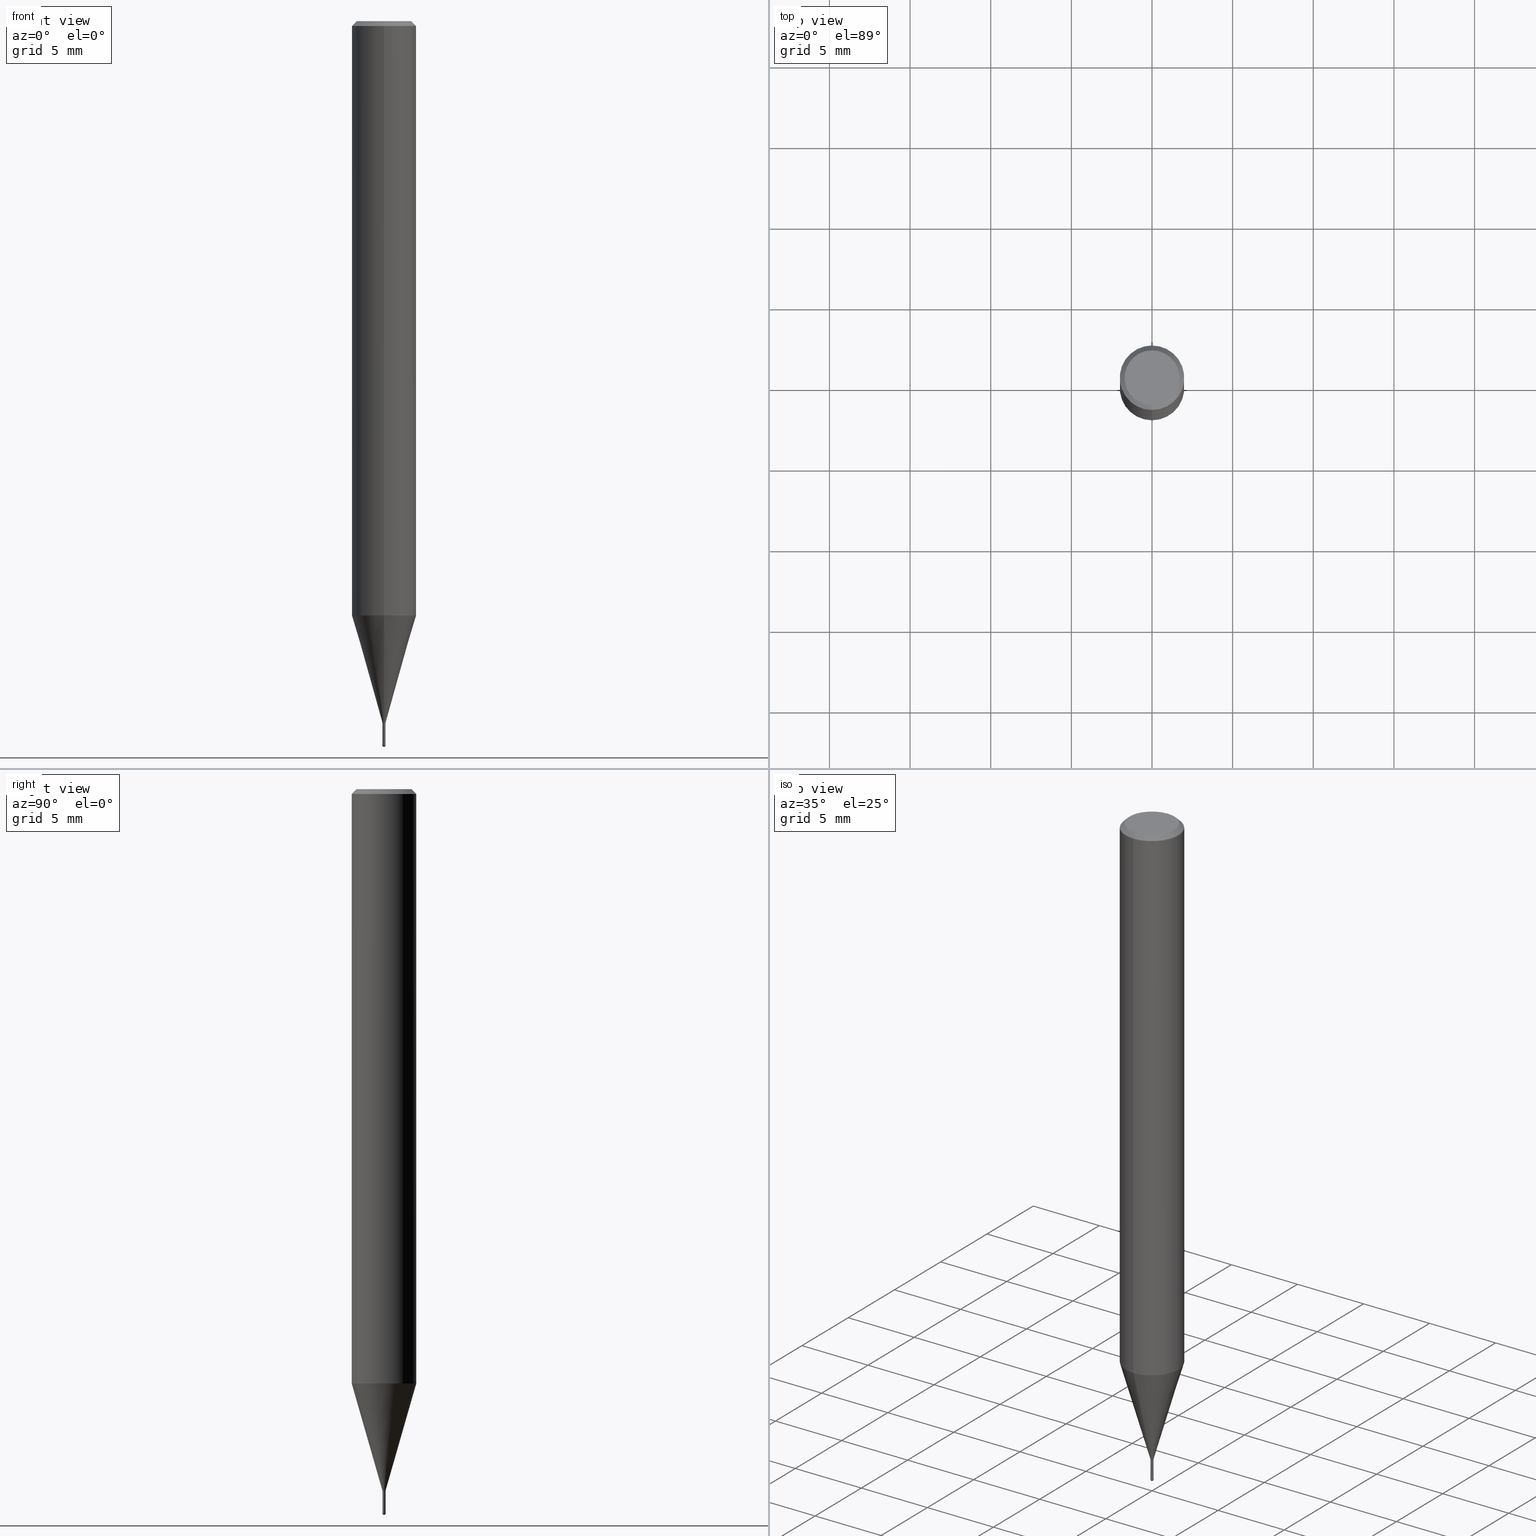
[diagram: canonical four-view strip — front | top / right | iso, engineering-drawing reading convention]
A machine part, canonical four-view strip (front | top / right | iso — engineering-drawing reading convention). The complete STEP part file that produces these views, byte-faithful:
ISO-10303-21;
HEADER;
FILE_DESCRIPTION(('no description'),'unknown implementation level');
FILE_NAME('HSLB2002-015-Huellk.stp','  ',('CIMSOURCE GmbH'),('CADClick - KiM GmbH - www.kimweb.de'),'unknown preprocess','ACIS','unknown authorization');
FILE_SCHEMA(('automotive_design'));
ENDSEC;
DATA;
#1=MECHANICAL_DESIGN_GEOMETRIC_PRESENTATION_REPRESENTATION(' ',(#14,#15,#16,#17,#18,#19,#20,#21,#22,#23,#24,#25,#26,#27,#28,#29,#30,#31,#32,#33,#34,#35,#36,#37,#38,#39,#40,#41,#42,#43,#44,#45,#46,#47,#48,#49,#50,#51,#52,#53,#54,#55,#56,#57,#58,#59,#60,#61,#62,#63,#64,#65,#66,#67,#68,#69,#70,#71,#72,#73,#74),#10);
#2=PRODUCT_DEFINITION_CONTEXT('',#75,'design');
#3=APPLICATION_PROTOCOL_DEFINITION('INTERNATIONAL STANDARD','automotive_design',1994,#75);
#4=PRODUCT_CATEGORY_RELATIONSHIP('NONE','NONE',#76,#77);
#5=SHAPE_DEFINITION_REPRESENTATION(#78,#79);
#6=PRODUCT_DEFINITION_CONTEXT('',#80,'design');
#7=APPLICATION_PROTOCOL_DEFINITION('INTERNATIONAL STANDARD','automotive_design',1994,#80);
#8=PRODUCT_CATEGORY_RELATIONSHIP('NONE','NONE',#81,#82);
#9=SHAPE_DEFINITION_REPRESENTATION(#83,#84);
#10= (GEOMETRIC_REPRESENTATION_CONTEXT(3)GLOBAL_UNCERTAINTY_ASSIGNED_CONTEXT((#87))GLOBAL_UNIT_ASSIGNED_CONTEXT((#89,#90,#91))REPRESENTATION_CONTEXT('NONE','WORKSPACE'));
#14=STYLED_ITEM('',(#93),#94);
#15=STYLED_ITEM('',(#95),#96);
#16=STYLED_ITEM('',(#97),#98);
#17=STYLED_ITEM('',(#99),#100);
#18=STYLED_ITEM('',(#101),#102);
#19=STYLED_ITEM('',(#103),#104);
#20=STYLED_ITEM('',(#105),#106);
#21=STYLED_ITEM('',(#107),#108);
#22=STYLED_ITEM('',(#109),#110);
#23=STYLED_ITEM('',(#111),#112);
#24=STYLED_ITEM('',(#113),#114);
#25=STYLED_ITEM('',(#115),#116);
#26=STYLED_ITEM('',(#117),#118);
#27=STYLED_ITEM('',(#119),#120);
#28=STYLED_ITEM('',(#121),#122);
#29=STYLED_ITEM('',(#123),#124);
#30=STYLED_ITEM('',(#125),#126);
#31=STYLED_ITEM('',(#127),#128);
#32=STYLED_ITEM('',(#129),#130);
#33=STYLED_ITEM('',(#131),#132);
#34=STYLED_ITEM('',(#133),#134);
#35=STYLED_ITEM('',(#135),#136);
#36=STYLED_ITEM('',(#137),#138);
#37=STYLED_ITEM('',(#139),#140);
#38=STYLED_ITEM('',(#141),#142);
#39=STYLED_ITEM('',(#143),#144);
#40=STYLED_ITEM('',(#145),#146);
#41=STYLED_ITEM('',(#147),#148);
#42=STYLED_ITEM('',(#149),#150);
#43=STYLED_ITEM('',(#151),#152);
#44=STYLED_ITEM('',(#153),#154);
#45=STYLED_ITEM('',(#155),#156);
#46=STYLED_ITEM('',(#157),#158);
#47=STYLED_ITEM('',(#159),#160);
#48=STYLED_ITEM('',(#161),#162);
#49=STYLED_ITEM('',(#163),#164);
#50=STYLED_ITEM('',(#165),#166);
#51=STYLED_ITEM('',(#167),#168);
#52=STYLED_ITEM('',(#169),#170);
#53=STYLED_ITEM('',(#171),#172);
#54=STYLED_ITEM('',(#173),#174);
#55=STYLED_ITEM('',(#175),#176);
#56=STYLED_ITEM('',(#177),#178);
#57=STYLED_ITEM('',(#179),#180);
#58=STYLED_ITEM('',(#181),#182);
#59=STYLED_ITEM('',(#183),#184);
#60=STYLED_ITEM('',(#185),#186);
#61=STYLED_ITEM('',(#187),#188);
#62=STYLED_ITEM('',(#189),#190);
#63=STYLED_ITEM('',(#191),#192);
#64=STYLED_ITEM('',(#193),#194);
#65=STYLED_ITEM('',(#195),#196);
#66=STYLED_ITEM('',(#197),#198);
#67=STYLED_ITEM('',(#199),#200);
#68=STYLED_ITEM('',(#201),#202);
#69=STYLED_ITEM('',(#203),#204);
#70=STYLED_ITEM('',(#205),#206);
#71=STYLED_ITEM('',(#207),#208);
#72=STYLED_ITEM('',(#209),#210);
#73=STYLED_ITEM('',(#211),#212);
#74=STYLED_ITEM('',(#213),#214);
#75=APPLICATION_CONTEXT(' ');
#76=PRODUCT_CATEGORY('part','NONE');
#77=PRODUCT_RELATED_PRODUCT_CATEGORY('detail',' ',(#215));
#78=PRODUCT_DEFINITION_SHAPE('NONE','NONE',#216);
#79=ADVANCED_BREP_SHAPE_REPRESENTATION('1',(#208,#217),#10);
#80=APPLICATION_CONTEXT(' ');
#81=PRODUCT_CATEGORY('part','NONE');
#82=PRODUCT_RELATED_PRODUCT_CATEGORY('detail',' ',(#218));
#83=PRODUCT_DEFINITION_SHAPE('NONE','NONE',#219);
#84=ADVANCED_BREP_SHAPE_REPRESENTATION('2',(#164,#220),#10);
#87=UNCERTAINTY_MEASURE_WITH_UNIT(LENGTH_MEASURE(1.0E-006),#89,'','');
#89= (CONVERSION_BASED_UNIT('MILLIMETRE',#223)LENGTH_UNIT()NAMED_UNIT(#226));
#90= (NAMED_UNIT(#228)PLANE_ANGLE_UNIT()SI_UNIT($,.RADIAN.));
#91= (NAMED_UNIT(#228)SOLID_ANGLE_UNIT()SI_UNIT($,.STERADIAN.));
#93=PRESENTATION_STYLE_ASSIGNMENT((#234));
#94=VERTEX_POINT('',#235);
#95=PRESENTATION_STYLE_ASSIGNMENT((#236));
#96=VERTEX_POINT('',#237);
#97=PRESENTATION_STYLE_ASSIGNMENT((#238));
#98=EDGE_CURVE('',#112,#132,#239,.T.);
#99=PRESENTATION_STYLE_ASSIGNMENT((#240));
#100=EDGE_CURVE('',#144,#120,#241,.T.);
#101=PRESENTATION_STYLE_ASSIGNMENT((#242));
#102=ADVANCED_FACE('',(#243),#244,.T.);
#103=PRESENTATION_STYLE_ASSIGNMENT((#245));
#104=VERTEX_POINT('',#246);
#105=PRESENTATION_STYLE_ASSIGNMENT((#247));
#106=EDGE_CURVE('',#94,#132,#248,.T.);
#107=PRESENTATION_STYLE_ASSIGNMENT((#249));
#108=EDGE_CURVE('',#214,#104,#250,.T.);
#109=PRESENTATION_STYLE_ASSIGNMENT((#251));
#110=EDGE_CURVE('',#120,#144,#252,.T.);
#111=PRESENTATION_STYLE_ASSIGNMENT((#253));
#112=VERTEX_POINT('',#254);
#113=PRESENTATION_STYLE_ASSIGNMENT((#255));
#114=VERTEX_POINT('',#256);
#115=PRESENTATION_STYLE_ASSIGNMENT((#257));
#116=EDGE_CURVE('',#190,#174,#258,.T.);
#117=PRESENTATION_STYLE_ASSIGNMENT((#259));
#118=EDGE_CURVE('',#136,#120,#260,.T.);
#119=PRESENTATION_STYLE_ASSIGNMENT((#261));
#120=VERTEX_POINT('',#262);
#121=PRESENTATION_STYLE_ASSIGNMENT((#263));
#122=ADVANCED_FACE('',(#264),#265,.T.);
#123=PRESENTATION_STYLE_ASSIGNMENT((#266));
#124=VERTEX_POINT('',#267);
#125=PRESENTATION_STYLE_ASSIGNMENT((#268));
#126=EDGE_CURVE('',#144,#120,#269,.T.);
#127=PRESENTATION_STYLE_ASSIGNMENT((#270));
#128=EDGE_CURVE('',#136,#124,#271,.T.);
#129=PRESENTATION_STYLE_ASSIGNMENT((#272));
#130=EDGE_CURVE('',#132,#148,#273,.T.);
#131=PRESENTATION_STYLE_ASSIGNMENT((#274));
#132=VERTEX_POINT('',#275);
#133=PRESENTATION_STYLE_ASSIGNMENT((#276));
#134=EDGE_CURVE('',#206,#104,#277,.T.);
#135=PRESENTATION_STYLE_ASSIGNMENT((#278));
#136=VERTEX_POINT('',#279);
#137=PRESENTATION_STYLE_ASSIGNMENT((#280));
#138=EDGE_CURVE('',#112,#114,#281,.T.);
#139=PRESENTATION_STYLE_ASSIGNMENT((#282));
#140=EDGE_CURVE('',#174,#190,#283,.T.);
#141=PRESENTATION_STYLE_ASSIGNMENT((#284));
#142=ADVANCED_FACE('',(#285),#286,.T.);
#143=PRESENTATION_STYLE_ASSIGNMENT((#287));
#144=VERTEX_POINT('',#288);
#145=PRESENTATION_STYLE_ASSIGNMENT((#289));
#146=EDGE_CURVE('',#214,#96,#290,.T.);
#147=PRESENTATION_STYLE_ASSIGNMENT((#291));
#148=VERTEX_POINT('',#292);
#149=PRESENTATION_STYLE_ASSIGNMENT((#293));
#150=ADVANCED_FACE('',(#294),#295,.T.);
#151=PRESENTATION_STYLE_ASSIGNMENT((#296));
#152=EDGE_CURVE('',#94,#114,#297,.T.);
#153=PRESENTATION_STYLE_ASSIGNMENT((#298));
#154=ADVANCED_FACE('',(#299),#300,.T.);
#155=PRESENTATION_STYLE_ASSIGNMENT((#301));
#156=EDGE_CURVE('',#114,#112,#302,.T.);
#157=PRESENTATION_STYLE_ASSIGNMENT((#303));
#158=EDGE_CURVE('',#104,#206,#304,.T.);
#159=PRESENTATION_STYLE_ASSIGNMENT((#305));
#160=ADVANCED_FACE('',(#306),#307,.T.);
#161=PRESENTATION_STYLE_ASSIGNMENT((#308));
#162=ADVANCED_FACE('',(#309),#310,.T.);
#163=PRESENTATION_STYLE_ASSIGNMENT((#311));
#164=MANIFOLD_SOLID_BREP('2',#312);
#165=PRESENTATION_STYLE_ASSIGNMENT((#313));
#166=EDGE_CURVE('',#96,#214,#314,.T.);
#167=PRESENTATION_STYLE_ASSIGNMENT((#315));
#168=ADVANCED_FACE('',(#316),#317,.T.);
#169=PRESENTATION_STYLE_ASSIGNMENT((#318));
#170=ADVANCED_FACE('',(#319),#320,.T.);
#171=PRESENTATION_STYLE_ASSIGNMENT((#321));
#172=ADVANCED_FACE('',(#322),#323,.T.);
#173=PRESENTATION_STYLE_ASSIGNMENT((#324));
#174=VERTEX_POINT('',#325);
#175=PRESENTATION_STYLE_ASSIGNMENT((#326));
#176=EDGE_CURVE('',#194,#94,#327,.T.);
#177=PRESENTATION_STYLE_ASSIGNMENT((#328));
#178=ADVANCED_FACE('',(#329),#330,.T.);
#179=PRESENTATION_STYLE_ASSIGNMENT((#331));
#180=EDGE_CURVE('',#148,#194,#332,.T.);
#181=PRESENTATION_STYLE_ASSIGNMENT((#333));
#182=ADVANCED_FACE('',(#334),#335,.T.);
#183=PRESENTATION_STYLE_ASSIGNMENT((#336));
#184=EDGE_CURVE('',#190,#206,#337,.T.);
#185=PRESENTATION_STYLE_ASSIGNMENT((#338));
#186=ADVANCED_FACE('',(#339),#340,.T.);
#187=PRESENTATION_STYLE_ASSIGNMENT((#341));
#188=ADVANCED_FACE('',(#342),#343,.T.);
#189=PRESENTATION_STYLE_ASSIGNMENT((#344));
#190=VERTEX_POINT('',#345);
#191=PRESENTATION_STYLE_ASSIGNMENT((#346));
#192=EDGE_CURVE('',#132,#94,#347,.T.);
#193=PRESENTATION_STYLE_ASSIGNMENT((#348));
#194=VERTEX_POINT('',#349);
#195=PRESENTATION_STYLE_ASSIGNMENT((#350));
#196=EDGE_CURVE('',#124,#136,#351,.T.);
#197=PRESENTATION_STYLE_ASSIGNMENT((#352));
#198=EDGE_CURVE('',#144,#124,#353,.T.);
#199=PRESENTATION_STYLE_ASSIGNMENT((#354));
#200=ADVANCED_FACE('',(#355,#356),#357,.T.);
#201=PRESENTATION_STYLE_ASSIGNMENT((#358));
#202=ADVANCED_FACE('',(#359),#360,.T.);
#203=PRESENTATION_STYLE_ASSIGNMENT((#361));
#204=EDGE_CURVE('',#104,#174,#362,.T.);
#205=PRESENTATION_STYLE_ASSIGNMENT((#363));
#206=VERTEX_POINT('',#364);
#207=PRESENTATION_STYLE_ASSIGNMENT((#365));
#208=MANIFOLD_SOLID_BREP('1',#366);
#209=PRESENTATION_STYLE_ASSIGNMENT((#367));
#210=EDGE_CURVE('',#194,#148,#368,.T.);
#211=PRESENTATION_STYLE_ASSIGNMENT((#369));
#212=EDGE_CURVE('',#206,#96,#370,.T.);
#213=PRESENTATION_STYLE_ASSIGNMENT((#371));
#214=VERTEX_POINT('',#372);
#215=PRODUCT('1','1','PART-1-DESC',(#373));
#216=PRODUCT_DEFINITION('NONE','NONE',#374,#2);
#217=AXIS2_PLACEMENT_3D('',#375,#376,#377);
#218=PRODUCT('2','2','PART-2-DESC',(#378));
#219=PRODUCT_DEFINITION('NONE','NONE',#379,#6);
#220=AXIS2_PLACEMENT_3D('',#380,#381,#382);
#223=LENGTH_MEASURE_WITH_UNIT(LENGTH_MEASURE(1.0),#383);
#226=DIMENSIONAL_EXPONENTS(1.0,0.0,0.0,0.0,0.0,0.0,0.0);
#228=DIMENSIONAL_EXPONENTS(0.0,0.0,0.0,0.0,0.0,0.0,0.0);
#234=POINT_STYLE(' ',#384,POSITIVE_LENGTH_MEASURE(1.0E-006),#385);
#235=CARTESIAN_POINT('',(0.0,0.09495,-43.5));
#236=POINT_STYLE(' ',#386,POSITIVE_LENGTH_MEASURE(1.0E-006),#387);
#237=CARTESIAN_POINT('',(0.0,2.0,-36.856));
#238=CURVE_STYLE('',#388,POSITIVE_LENGTH_MEASURE(1.0E-006),#389);
#239=LINE('',#390,#391);
#240=CURVE_STYLE('',#392,POSITIVE_LENGTH_MEASURE(1.0E-006),#393);
#241=CIRCLE('',#394,0.1);
#242=SURFACE_STYLE_USAGE(.BOTH.,#395);
#243=FACE_OUTER_BOUND('',#396,.T.);
#244=CYLINDRICAL_SURFACE('',#397,2.0);
#245=POINT_STYLE(' ',#398,POSITIVE_LENGTH_MEASURE(1.0E-006),#399);
#246=CARTESIAN_POINT('',(2.44921270764475E-016,-2.0,-0.299999999999997));
#247=CURVE_STYLE('',#400,POSITIVE_LENGTH_MEASURE(1.0E-006),#401);
#248=CIRCLE('',#402,0.09495);
#249=CURVE_STYLE('',#403,POSITIVE_LENGTH_MEASURE(1.0E-006),#404);
#250=LINE('',#405,#406);
#251=CURVE_STYLE('',#407,POSITIVE_LENGTH_MEASURE(1.0E-006),#408);
#252=CIRCLE('',#409,0.1);
#253=POINT_STYLE(' ',#410,POSITIVE_LENGTH_MEASURE(1.0E-006),#411);
#254=CARTESIAN_POINT('',(1.16276373295435E-017,-0.09495,-44.84));
#255=POINT_STYLE(' ',#412,POSITIVE_LENGTH_MEASURE(1.0E-006),#413);
#256=CARTESIAN_POINT('',(0.0,0.09495,-44.84));
#257=CURVE_STYLE('',#414,POSITIVE_LENGTH_MEASURE(1.0E-006),#415);
#258=CIRCLE('',#416,1.7);
#259=CURVE_STYLE('',#417,POSITIVE_LENGTH_MEASURE(1.0E-006),#418);
#260=LINE('',#419,#420);
#261=POINT_STYLE(' ',#421,POSITIVE_LENGTH_MEASURE(1.0E-006),#422);
#262=CARTESIAN_POINT('',(0.0,0.1,-44.9));
#263=SURFACE_STYLE_USAGE(.BOTH.,#423);
#264=FACE_OUTER_BOUND('',#424,.T.);
#265=CONICAL_SURFACE('',#425,1.04745,0.279233718115795);
#266=POINT_STYLE(' ',#426,POSITIVE_LENGTH_MEASURE(1.0E-006),#427);
#267=CARTESIAN_POINT('',(1.22338174746855E-017,-0.0999,-44.84));
#268=CURVE_STYLE('',#428,POSITIVE_LENGTH_MEASURE(1.0E-006),#429);
#269=CIRCLE('',#430,0.1);
#270=CURVE_STYLE('',#431,POSITIVE_LENGTH_MEASURE(1.0E-006),#432);
#271=CIRCLE('',#433,0.0999);
#272=CURVE_STYLE('',#434,POSITIVE_LENGTH_MEASURE(1.0E-006),#435);
#273=LINE('',#436,#437);
#274=POINT_STYLE(' ',#438,POSITIVE_LENGTH_MEASURE(1.0E-006),#439);
#275=CARTESIAN_POINT('',(1.16276373295435E-017,-0.09495,-43.5));
#276=CURVE_STYLE('',#440,POSITIVE_LENGTH_MEASURE(1.0E-006),#441);
#277=CIRCLE('',#442,2.0);
#278=POINT_STYLE(' ',#443,POSITIVE_LENGTH_MEASURE(1.0E-006),#444);
#279=CARTESIAN_POINT('',(0.0,0.0999,-44.84));
#280=CURVE_STYLE('',#445,POSITIVE_LENGTH_MEASURE(1.0E-006),#446);
#281=CIRCLE('',#447,0.09495);
#282=CURVE_STYLE('',#448,POSITIVE_LENGTH_MEASURE(1.0E-006),#449);
#283=CIRCLE('',#450,1.7);
#284=SURFACE_STYLE_USAGE(.BOTH.,#451);
#285=FACE_OUTER_BOUND('',#452,.T.);
#286=CYLINDRICAL_SURFACE('',#453,0.09495);
#287=POINT_STYLE(' ',#454,POSITIVE_LENGTH_MEASURE(1.0E-006),#455);
#288=CARTESIAN_POINT('',(1.22460635382238E-017,-0.1,-44.9));
#289=CURVE_STYLE('',#456,POSITIVE_LENGTH_MEASURE(1.0E-006),#457);
#290=CIRCLE('',#458,2.0);
#291=POINT_STYLE(' ',#459,POSITIVE_LENGTH_MEASURE(1.0E-006),#460);
#292=CARTESIAN_POINT('',(2.44915147732706E-016,-1.99995,-36.856));
#293=SURFACE_STYLE_USAGE(.BOTH.,#461);
#294=FACE_OUTER_BOUND('',#462,.T.);
#295=CONICAL_SURFACE('',#463,1.85,0.785398163397453);
#296=CURVE_STYLE('',#464,POSITIVE_LENGTH_MEASURE(1.0E-006),#465);
#297=LINE('',#466,#467);
#298=SURFACE_STYLE_USAGE(.BOTH.,#468);
#299=FACE_OUTER_BOUND('',#469,.T.);
#300=SPHERICAL_SURFACE('',#470,0.1);
#301=CURVE_STYLE('',#471,POSITIVE_LENGTH_MEASURE(1.0E-006),#472);
#302=CIRCLE('',#473,0.09495);
#303=CURVE_STYLE('',#474,POSITIVE_LENGTH_MEASURE(1.0E-006),#475);
#304=CIRCLE('',#476,2.0);
#305=SURFACE_STYLE_USAGE(.BOTH.,#477);
#306=FACE_OUTER_BOUND('',#478,.T.);
#307=PLANE('',#479);
#308=SURFACE_STYLE_USAGE(.BOTH.,#480);
#309=FACE_OUTER_BOUND('',#481,.T.);
#310=SPHERICAL_SURFACE('',#482,0.1);
#311=SURFACE_STYLE_USAGE(.BOTH.,#483);
#312=CLOSED_SHELL('',(#162,#178,#182,#202,#154));
#313=CURVE_STYLE('',#484,POSITIVE_LENGTH_MEASURE(1.0E-006),#485);
#314=CIRCLE('',#486,2.0);
#315=SURFACE_STYLE_USAGE(.BOTH.,#487);
#316=FACE_OUTER_BOUND('',#488,.T.);
#317=CYLINDRICAL_SURFACE('',#489,0.09495);
#318=SURFACE_STYLE_USAGE(.BOTH.,#490);
#319=FACE_OUTER_BOUND('',#491,.T.);
#320=PLANE('',#492);
#321=SURFACE_STYLE_USAGE(.BOTH.,#493);
#322=FACE_OUTER_BOUND('',#494,.T.);
#323=CONICAL_SURFACE('',#495,1.85,0.785398163397453);
#324=POINT_STYLE(' ',#496,POSITIVE_LENGTH_MEASURE(1.0E-006),#497);
#325=CARTESIAN_POINT('',(2.08183080149804E-016,-1.7,0.0));
#326=CURVE_STYLE('',#498,POSITIVE_LENGTH_MEASURE(1.0E-006),#499);
#327=LINE('',#500,#501);
#328=SURFACE_STYLE_USAGE(.BOTH.,#502);
#329=FACE_OUTER_BOUND('',#503,.T.);
#330=CONICAL_SURFACE('',#504,0.09995,0.00166666512345941);
#331=CURVE_STYLE('',#505,POSITIVE_LENGTH_MEASURE(1.0E-006),#506);
#332=CIRCLE('',#507,1.99995);
#333=SURFACE_STYLE_USAGE(.BOTH.,#508);
#334=FACE_OUTER_BOUND('',#509,.T.);
#335=PLANE('',#510);
#336=CURVE_STYLE('',#511,POSITIVE_LENGTH_MEASURE(1.0E-006),#512);
#337=LINE('',#513,#514);
#338=SURFACE_STYLE_USAGE(.BOTH.,#515);
#339=FACE_OUTER_BOUND('',#516,.T.);
#340=CYLINDRICAL_SURFACE('',#517,2.0);
#341=SURFACE_STYLE_USAGE(.BOTH.,#518);
#342=FACE_OUTER_BOUND('',#519,.T.);
#343=CONICAL_SURFACE('',#520,1.04745,0.279233718115795);
#344=POINT_STYLE(' ',#521,POSITIVE_LENGTH_MEASURE(1.0E-006),#522);
#345=CARTESIAN_POINT('',(0.0,1.7,0.0));
#346=CURVE_STYLE('',#523,POSITIVE_LENGTH_MEASURE(1.0E-006),#524);
#347=CIRCLE('',#525,0.09495);
#348=POINT_STYLE(' ',#526,POSITIVE_LENGTH_MEASURE(1.0E-006),#527);
#349=CARTESIAN_POINT('',(0.0,1.99995,-36.856));
#350=CURVE_STYLE('',#528,POSITIVE_LENGTH_MEASURE(1.0E-006),#529);
#351=CIRCLE('',#530,0.0999);
#352=CURVE_STYLE('',#531,POSITIVE_LENGTH_MEASURE(1.0E-006),#532);
#353=LINE('',#533,#534);
#354=SURFACE_STYLE_USAGE(.BOTH.,#535);
#355=FACE_OUTER_BOUND('',#536,.T.);
#356=FACE_BOUND('',#537,.T.);
#357=PLANE('',#538);
#358=SURFACE_STYLE_USAGE(.BOTH.,#539);
#359=FACE_OUTER_BOUND('',#540,.T.);
#360=CONICAL_SURFACE('',#541,0.09995,0.00166666512345941);
#361=CURVE_STYLE('',#542,POSITIVE_LENGTH_MEASURE(1.0E-006),#543);
#362=LINE('',#544,#545);
#363=POINT_STYLE(' ',#546,POSITIVE_LENGTH_MEASURE(1.0E-006),#547);
#364=CARTESIAN_POINT('',(0.0,2.0,-0.299999999999997));
#365=SURFACE_STYLE_USAGE(.BOTH.,#548);
#366=CLOSED_SHELL('',(#142,#188,#186,#150,#200,#170,#172,#102,#122,#168,#160));
#367=CURVE_STYLE('',#549,POSITIVE_LENGTH_MEASURE(1.0E-006),#550);
#368=CIRCLE('',#551,1.99995);
#369=CURVE_STYLE('',#552,POSITIVE_LENGTH_MEASURE(1.0E-006),#553);
#370=LINE('',#554,#555);
#371=POINT_STYLE(' ',#556,POSITIVE_LENGTH_MEASURE(1.0E-006),#557);
#372=CARTESIAN_POINT('',(2.44921270764475E-016,-2.0,-36.856));
#373=PRODUCT_CONTEXT('',#75,'mechanical');
#374=PRODUCT_DEFINITION_FORMATION_WITH_SPECIFIED_SOURCE(' ','NONE',#215,.NOT_KNOWN.);
#375=CARTESIAN_POINT('',(0.0,0.0,0.0));
#376=DIRECTION('',(0.0,0.0,1.0));
#377=DIRECTION('',(1.0,0.0,0.0));
#378=PRODUCT_CONTEXT('',#80,'mechanical');
#379=PRODUCT_DEFINITION_FORMATION_WITH_SPECIFIED_SOURCE(' ','NONE',#218,.NOT_KNOWN.);
#380=CARTESIAN_POINT('',(0.0,0.0,0.0));
#381=DIRECTION('',(0.0,0.0,1.0));
#382=DIRECTION('',(1.0,0.0,0.0));
#383= (NAMED_UNIT(#226)LENGTH_UNIT()SI_UNIT(.MILLI.,.METRE.));
#384=PRE_DEFINED_MARKER('');
#385=COLOUR_RGB('',0.498039215803146,0.498039215803146,0.498039215803146);
#386=PRE_DEFINED_MARKER('');
#387=COLOUR_RGB('',0.498039215803146,0.498039215803146,0.498039215803146);
#388=DRAUGHTING_PRE_DEFINED_CURVE_FONT('continuous');
#389=COLOUR_RGB('',0.498039215803146,0.498039215803146,0.498039215803146);
#390=CARTESIAN_POINT('',(1.16276373295435E-017,-0.09495,-44.17));
#391=VECTOR('',#559,1.0);
#392=DRAUGHTING_PRE_DEFINED_CURVE_FONT('continuous');
#393=COLOUR_RGB('',0.800000011920929,0.800000011920929,0.800000011920929);
#394=AXIS2_PLACEMENT_3D('',#560,#561,#562);
#395=SURFACE_SIDE_STYLE('',(#563));
#396=EDGE_LOOP('',(#564,#565,#566,#567));
#397=AXIS2_PLACEMENT_3D('',#568,#569,#570);
#398=PRE_DEFINED_MARKER('');
#399=COLOUR_RGB('',0.498039215803146,0.498039215803146,0.498039215803146);
#400=DRAUGHTING_PRE_DEFINED_CURVE_FONT('continuous');
#401=COLOUR_RGB('',0.498039215803146,0.498039215803146,0.498039215803146);
#402=AXIS2_PLACEMENT_3D('',#571,#572,#573);
#403=DRAUGHTING_PRE_DEFINED_CURVE_FONT('continuous');
#404=COLOUR_RGB('',0.498039215803146,0.498039215803146,0.498039215803146);
#405=CARTESIAN_POINT('',(2.44921270764475E-016,-2.0,-18.578));
#406=VECTOR('',#574,1.0);
#407=DRAUGHTING_PRE_DEFINED_CURVE_FONT('continuous');
#408=COLOUR_RGB('',0.800000011920929,0.800000011920929,0.800000011920929);
#409=AXIS2_PLACEMENT_3D('',#575,#576,#577);
#410=PRE_DEFINED_MARKER('');
#411=COLOUR_RGB('',0.498039215803146,0.498039215803146,0.498039215803146);
#412=PRE_DEFINED_MARKER('');
#413=COLOUR_RGB('',0.498039215803146,0.498039215803146,0.498039215803146);
#414=DRAUGHTING_PRE_DEFINED_CURVE_FONT('continuous');
#415=COLOUR_RGB('',0.498039215803146,0.498039215803146,0.498039215803146);
#416=AXIS2_PLACEMENT_3D('',#578,#579,#580);
#417=DRAUGHTING_PRE_DEFINED_CURVE_FONT('continuous');
#418=COLOUR_RGB('',0.800000011920929,0.800000011920929,0.800000011920929);
#419=CARTESIAN_POINT('',(-1.22399405064547E-017,0.09995,-44.87));
#420=VECTOR('',#581,1.0);
#421=PRE_DEFINED_MARKER('');
#422=COLOUR_RGB('',0.800000011920929,0.800000011920929,0.800000011920929);
#423=SURFACE_SIDE_STYLE('',(#582));
#424=EDGE_LOOP('',(#583,#584,#585,#586));
#425=AXIS2_PLACEMENT_3D('',#587,#588,#589);
#426=PRE_DEFINED_MARKER('');
#427=COLOUR_RGB('',0.800000011920929,0.800000011920929,0.800000011920929);
#428=DRAUGHTING_PRE_DEFINED_CURVE_FONT('continuous');
#429=COLOUR_RGB('',0.800000011920929,0.800000011920929,0.800000011920929);
#430=AXIS2_PLACEMENT_3D('',#590,#591,#592);
#431=DRAUGHTING_PRE_DEFINED_CURVE_FONT('continuous');
#432=COLOUR_RGB('',0.800000011920929,0.800000011920929,0.800000011920929);
#433=AXIS2_PLACEMENT_3D('',#593,#594,#595);
#434=DRAUGHTING_PRE_DEFINED_CURVE_FONT('continuous');
#435=COLOUR_RGB('',0.498039215803146,0.498039215803146,0.498039215803146);
#436=CARTESIAN_POINT('',(1.28271392531125E-016,-1.04745,-40.178));
#437=VECTOR('',#596,1.0);
#438=PRE_DEFINED_MARKER('');
#439=COLOUR_RGB('',0.498039215803146,0.498039215803146,0.498039215803146);
#440=DRAUGHTING_PRE_DEFINED_CURVE_FONT('continuous');
#441=COLOUR_RGB('',0.498039215803146,0.498039215803146,0.498039215803146);
#442=AXIS2_PLACEMENT_3D('',#597,#598,#599);
#443=PRE_DEFINED_MARKER('');
#444=COLOUR_RGB('',0.800000011920929,0.800000011920929,0.800000011920929);
#445=DRAUGHTING_PRE_DEFINED_CURVE_FONT('continuous');
#446=COLOUR_RGB('',0.498039215803146,0.498039215803146,0.498039215803146);
#447=AXIS2_PLACEMENT_3D('',#600,#601,#602);
#448=DRAUGHTING_PRE_DEFINED_CURVE_FONT('continuous');
#449=COLOUR_RGB('',0.498039215803146,0.498039215803146,0.498039215803146);
#450=AXIS2_PLACEMENT_3D('',#603,#604,#605);
#451=SURFACE_SIDE_STYLE('',(#606));
#452=EDGE_LOOP('',(#607,#608,#609,#610));
#453=AXIS2_PLACEMENT_3D('',#611,#612,#613);
#454=PRE_DEFINED_MARKER('');
#455=COLOUR_RGB('',0.800000011920929,0.800000011920929,0.800000011920929);
#456=DRAUGHTING_PRE_DEFINED_CURVE_FONT('continuous');
#457=COLOUR_RGB('',0.498039215803146,0.498039215803146,0.498039215803146);
#458=AXIS2_PLACEMENT_3D('',#614,#615,#616);
#459=PRE_DEFINED_MARKER('');
#460=COLOUR_RGB('',0.498039215803146,0.498039215803146,0.498039215803146);
#461=SURFACE_SIDE_STYLE('',(#617));
#462=EDGE_LOOP('',(#618,#619,#620,#621));
#463=AXIS2_PLACEMENT_3D('',#622,#623,#624);
#464=DRAUGHTING_PRE_DEFINED_CURVE_FONT('continuous');
#465=COLOUR_RGB('',0.498039215803146,0.498039215803146,0.498039215803146);
#466=CARTESIAN_POINT('',(-1.16276373295435E-017,0.09495,-44.17));
#467=VECTOR('',#625,1.0);
#468=SURFACE_SIDE_STYLE('',(#626));
#469=EDGE_LOOP('',(#627,#628));
#470=AXIS2_PLACEMENT_3D('',#629,#630,#631);
#471=DRAUGHTING_PRE_DEFINED_CURVE_FONT('continuous');
#472=COLOUR_RGB('',0.498039215803146,0.498039215803146,0.498039215803146);
#473=AXIS2_PLACEMENT_3D('',#632,#633,#634);
#474=DRAUGHTING_PRE_DEFINED_CURVE_FONT('continuous');
#475=COLOUR_RGB('',0.498039215803146,0.498039215803146,0.498039215803146);
#476=AXIS2_PLACEMENT_3D('',#635,#636,#637);
#477=SURFACE_SIDE_STYLE('',(#638));
#478=EDGE_LOOP('',(#639,#640));
#479=AXIS2_PLACEMENT_3D('',#641,#642,#643);
#480=SURFACE_SIDE_STYLE('',(#644));
#481=EDGE_LOOP('',(#645,#646));
#482=AXIS2_PLACEMENT_3D('',#647,#648,#649);
#483=SURFACE_SIDE_STYLE('',(#650));
#484=DRAUGHTING_PRE_DEFINED_CURVE_FONT('continuous');
#485=COLOUR_RGB('',0.498039215803146,0.498039215803146,0.498039215803146);
#486=AXIS2_PLACEMENT_3D('',#651,#652,#653);
#487=SURFACE_SIDE_STYLE('',(#654));
#488=EDGE_LOOP('',(#655,#656,#657,#658));
#489=AXIS2_PLACEMENT_3D('',#659,#660,#661);
#490=SURFACE_SIDE_STYLE('',(#662));
#491=EDGE_LOOP('',(#663,#664));
#492=AXIS2_PLACEMENT_3D('',#665,#666,#667);
#493=SURFACE_SIDE_STYLE('',(#668));
#494=EDGE_LOOP('',(#669,#670,#671,#672));
#495=AXIS2_PLACEMENT_3D('',#673,#674,#675);
#496=PRE_DEFINED_MARKER('');
#497=COLOUR_RGB('',0.498039215803146,0.498039215803146,0.498039215803146);
#498=DRAUGHTING_PRE_DEFINED_CURVE_FONT('continuous');
#499=COLOUR_RGB('',0.498039215803146,0.498039215803146,0.498039215803146);
#500=CARTESIAN_POINT('',(-1.28271392531125E-016,1.04745,-40.178));
#501=VECTOR('',#676,1.0);
#502=SURFACE_SIDE_STYLE('',(#677));
#503=EDGE_LOOP('',(#678,#679,#680,#681));
#504=AXIS2_PLACEMENT_3D('',#682,#683,#684);
#505=DRAUGHTING_PRE_DEFINED_CURVE_FONT('continuous');
#506=COLOUR_RGB('',0.498039215803146,0.498039215803146,0.498039215803146);
#507=AXIS2_PLACEMENT_3D('',#685,#686,#687);
#508=SURFACE_SIDE_STYLE('',(#688));
#509=EDGE_LOOP('',(#689,#690));
#510=AXIS2_PLACEMENT_3D('',#691,#692,#693);
#511=DRAUGHTING_PRE_DEFINED_CURVE_FONT('continuous');
#512=COLOUR_RGB('',0.498039215803146,0.498039215803146,0.498039215803146);
#513=CARTESIAN_POINT('',(-2.2655217545714E-016,1.85,-0.149999999999999));
#514=VECTOR('',#694,1.0);
#515=SURFACE_SIDE_STYLE('',(#695));
#516=EDGE_LOOP('',(#696,#697,#698,#699));
#517=AXIS2_PLACEMENT_3D('',#700,#701,#702);
#518=SURFACE_SIDE_STYLE('',(#703));
#519=EDGE_LOOP('',(#704,#705,#706,#707));
#520=AXIS2_PLACEMENT_3D('',#708,#709,#710);
#521=PRE_DEFINED_MARKER('');
#522=COLOUR_RGB('',0.498039215803146,0.498039215803146,0.498039215803146);
#523=DRAUGHTING_PRE_DEFINED_CURVE_FONT('continuous');
#524=COLOUR_RGB('',0.498039215803146,0.498039215803146,0.498039215803146);
#525=AXIS2_PLACEMENT_3D('',#711,#712,#713);
#526=PRE_DEFINED_MARKER('');
#527=COLOUR_RGB('',0.498039215803146,0.498039215803146,0.498039215803146);
#528=DRAUGHTING_PRE_DEFINED_CURVE_FONT('continuous');
#529=COLOUR_RGB('',0.800000011920929,0.800000011920929,0.800000011920929);
#530=AXIS2_PLACEMENT_3D('',#714,#715,#716);
#531=DRAUGHTING_PRE_DEFINED_CURVE_FONT('continuous');
#532=COLOUR_RGB('',0.800000011920929,0.800000011920929,0.800000011920929);
#533=CARTESIAN_POINT('',(1.22399405064547E-017,-0.09995,-44.87));
#534=VECTOR('',#717,1.0);
#535=SURFACE_SIDE_STYLE('',(#718));
#536=EDGE_LOOP('',(#719,#720));
#537=EDGE_LOOP('',(#721,#722));
#538=AXIS2_PLACEMENT_3D('',#723,#724,#725);
#539=SURFACE_SIDE_STYLE('',(#726));
#540=EDGE_LOOP('',(#727,#728,#729,#730));
#541=AXIS2_PLACEMENT_3D('',#731,#732,#733);
#542=DRAUGHTING_PRE_DEFINED_CURVE_FONT('continuous');
#543=COLOUR_RGB('',0.498039215803146,0.498039215803146,0.498039215803146);
#544=CARTESIAN_POINT('',(2.2655217545714E-016,-1.85,-0.149999999999999));
#545=VECTOR('',#734,1.0);
#546=PRE_DEFINED_MARKER('');
#547=COLOUR_RGB('',0.498039215803146,0.498039215803146,0.498039215803146);
#548=SURFACE_SIDE_STYLE('',(#735));
#549=DRAUGHTING_PRE_DEFINED_CURVE_FONT('continuous');
#550=COLOUR_RGB('',0.498039215803146,0.498039215803146,0.498039215803146);
#551=AXIS2_PLACEMENT_3D('',#736,#737,#738);
#552=DRAUGHTING_PRE_DEFINED_CURVE_FONT('continuous');
#553=COLOUR_RGB('',0.498039215803146,0.498039215803146,0.498039215803146);
#554=CARTESIAN_POINT('',(-2.44921270764475E-016,2.0,-18.578));
#555=VECTOR('',#739,1.0);
#556=PRE_DEFINED_MARKER('');
#557=COLOUR_RGB('',0.498039215803146,0.498039215803146,0.498039215803146);
#559=DIRECTION('',(-0.0,-0.0,1.0));
#560=CARTESIAN_POINT('',(0.0,0.0,-44.9));
#561=DIRECTION('',(0.0,0.0,-1.0));
#562=DIRECTION('',(0.0,1.0,0.0));
#563=SURFACE_STYLE_FILL_AREA(#740);
#564=ORIENTED_EDGE('',*,*,#212,.T.);
#565=ORIENTED_EDGE('',*,*,#146,.F.);
#566=ORIENTED_EDGE('',*,*,#108,.T.);
#567=ORIENTED_EDGE('',*,*,#158,.T.);
#568=CARTESIAN_POINT('',(0.0,0.0,-18.578));
#569=DIRECTION('',(-0.0,-0.0,1.0));
#570=DIRECTION('',(0.0,1.0,0.0));
#571=CARTESIAN_POINT('',(0.0,0.0,-43.5));
#572=DIRECTION('',(0.0,0.0,-1.0));
#573=DIRECTION('',(0.0,1.0,0.0));
#574=DIRECTION('',(-0.0,-0.0,1.0));
#575=CARTESIAN_POINT('',(0.0,0.0,-44.9));
#576=DIRECTION('',(0.0,0.0,-1.0));
#577=DIRECTION('',(0.0,1.0,0.0));
#578=CARTESIAN_POINT('',(0.0,0.0,0.0));
#579=DIRECTION('',(0.0,0.0,-1.0));
#580=DIRECTION('',(0.0,1.0,0.0));
#581=DIRECTION('',(-2.041007754973E-019,0.00166666435185672,-0.999998611114005));
#582=SURFACE_STYLE_FILL_AREA(#741);
#583=ORIENTED_EDGE('',*,*,#176,.T.);
#584=ORIENTED_EDGE('',*,*,#192,.F.);
#585=ORIENTED_EDGE('',*,*,#130,.T.);
#586=ORIENTED_EDGE('',*,*,#180,.T.);
#587=CARTESIAN_POINT('',(0.0,0.0,-40.178));
#588=DIRECTION('',(-0.0,-0.0,1.0));
#589=DIRECTION('',(0.0,1.0,0.0));
#590=CARTESIAN_POINT('',(0.0,0.0,-44.9));
#591=DIRECTION('',(1.0,0.0,1.22460635382236E-016));
#592=DIRECTION('',(-1.22460635382236E-016,0.0,1.0));
#593=CARTESIAN_POINT('',(0.0,0.0,-44.84));
#594=DIRECTION('',(0.0,0.0,-1.0));
#595=DIRECTION('',(0.0,1.0,0.0));
#596=DIRECTION('',(3.37524935540219E-017,-0.275619128127744,0.961266922457078));
#597=CARTESIAN_POINT('',(0.0,0.0,-0.299999999999997));
#598=DIRECTION('',(0.0,0.0,-1.0));
#599=DIRECTION('',(0.0,1.0,0.0));
#600=CARTESIAN_POINT('',(0.0,0.0,-44.84));
#601=DIRECTION('',(0.0,0.0,-1.0));
#602=DIRECTION('',(0.0,1.0,0.0));
#603=CARTESIAN_POINT('',(0.0,0.0,0.0));
#604=DIRECTION('',(0.0,0.0,-1.0));
#605=DIRECTION('',(0.0,1.0,0.0));
#606=SURFACE_STYLE_FILL_AREA(#742);
#607=ORIENTED_EDGE('',*,*,#152,.F.);
#608=ORIENTED_EDGE('',*,*,#106,.T.);
#609=ORIENTED_EDGE('',*,*,#98,.F.);
#610=ORIENTED_EDGE('',*,*,#156,.F.);
#611=CARTESIAN_POINT('',(0.0,0.0,-44.17));
#612=DIRECTION('',(-0.0,-0.0,1.0));
#613=DIRECTION('',(0.0,1.0,0.0));
#614=CARTESIAN_POINT('',(0.0,0.0,-36.856));
#615=DIRECTION('',(0.0,0.0,-1.0));
#616=DIRECTION('',(0.0,1.0,0.0));
#617=SURFACE_STYLE_FILL_AREA(#743);
#618=ORIENTED_EDGE('',*,*,#184,.F.);
#619=ORIENTED_EDGE('',*,*,#116,.T.);
#620=ORIENTED_EDGE('',*,*,#204,.F.);
#621=ORIENTED_EDGE('',*,*,#134,.F.);
#622=CARTESIAN_POINT('',(0.0,0.0,-0.149999999999999));
#623=DIRECTION('',(0.0,-0.0,-1.0));
#624=DIRECTION('',(0.0,1.0,0.0));
#625=DIRECTION('',(0.0,0.0,-1.0));
#626=SURFACE_STYLE_FILL_AREA(#744);
#627=ORIENTED_EDGE('',*,*,#126,.T.);
#628=ORIENTED_EDGE('',*,*,#110,.T.);
#629=CARTESIAN_POINT('',(0.0,0.0,-44.9));
#630=DIRECTION('',(0.0,1.0,0.0));
#631=DIRECTION('',(0.0,0.0,-1.0));
#632=CARTESIAN_POINT('',(0.0,0.0,-44.84));
#633=DIRECTION('',(0.0,0.0,-1.0));
#634=DIRECTION('',(0.0,1.0,0.0));
#635=CARTESIAN_POINT('',(0.0,0.0,-0.299999999999997));
#636=DIRECTION('',(0.0,0.0,-1.0));
#637=DIRECTION('',(0.0,1.0,0.0));
#638=SURFACE_STYLE_FILL_AREA(#745);
#639=ORIENTED_EDGE('',*,*,#156,.T.);
#640=ORIENTED_EDGE('',*,*,#138,.T.);
#641=CARTESIAN_POINT('',(0.0,0.047475,-44.84));
#642=DIRECTION('',(0.0,0.0,-1.0));
#643=DIRECTION('',(0.0,1.0,0.0));
#644=SURFACE_STYLE_FILL_AREA(#746);
#645=ORIENTED_EDGE('',*,*,#126,.F.);
#646=ORIENTED_EDGE('',*,*,#100,.T.);
#647=CARTESIAN_POINT('',(0.0,0.0,-44.9));
#648=DIRECTION('',(0.0,1.0,0.0));
#649=DIRECTION('',(0.0,0.0,-1.0));
#650=SURFACE_STYLE_FILL_AREA(#747);
#651=CARTESIAN_POINT('',(0.0,0.0,-36.856));
#652=DIRECTION('',(0.0,0.0,-1.0));
#653=DIRECTION('',(0.0,1.0,0.0));
#654=SURFACE_STYLE_FILL_AREA(#748);
#655=ORIENTED_EDGE('',*,*,#152,.T.);
#656=ORIENTED_EDGE('',*,*,#138,.F.);
#657=ORIENTED_EDGE('',*,*,#98,.T.);
#658=ORIENTED_EDGE('',*,*,#192,.T.);
#659=CARTESIAN_POINT('',(0.0,0.0,-44.17));
#660=DIRECTION('',(-0.0,-0.0,1.0));
#661=DIRECTION('',(0.0,1.0,0.0));
#662=SURFACE_STYLE_FILL_AREA(#749);
#663=ORIENTED_EDGE('',*,*,#116,.F.);
#664=ORIENTED_EDGE('',*,*,#140,.F.);
#665=CARTESIAN_POINT('',(0.0,0.85,0.0));
#666=DIRECTION('',(-0.0,0.0,1.0));
#667=DIRECTION('',(0.0,-1.0,0.0));
#668=SURFACE_STYLE_FILL_AREA(#750);
#669=ORIENTED_EDGE('',*,*,#184,.T.);
#670=ORIENTED_EDGE('',*,*,#158,.F.);
#671=ORIENTED_EDGE('',*,*,#204,.T.);
#672=ORIENTED_EDGE('',*,*,#140,.T.);
#673=CARTESIAN_POINT('',(0.0,0.0,-0.149999999999999));
#674=DIRECTION('',(0.0,-0.0,-1.0));
#675=DIRECTION('',(0.0,1.0,0.0));
#676=DIRECTION('',(3.37524935540219E-017,-0.275619128127744,-0.961266922457078));
#677=SURFACE_STYLE_FILL_AREA(#751);
#678=ORIENTED_EDGE('',*,*,#118,.F.);
#679=ORIENTED_EDGE('',*,*,#128,.T.);
#680=ORIENTED_EDGE('',*,*,#198,.F.);
#681=ORIENTED_EDGE('',*,*,#110,.F.);
#682=CARTESIAN_POINT('',(0.0,0.0,-44.87));
#683=DIRECTION('',(0.0,-0.0,-1.0));
#684=DIRECTION('',(0.0,1.0,0.0));
#685=CARTESIAN_POINT('',(0.0,0.0,-36.856));
#686=DIRECTION('',(0.0,0.0,-1.0));
#687=DIRECTION('',(0.0,1.0,0.0));
#688=SURFACE_STYLE_FILL_AREA(#752);
#689=ORIENTED_EDGE('',*,*,#128,.F.);
#690=ORIENTED_EDGE('',*,*,#196,.F.);
#691=CARTESIAN_POINT('',(0.0,0.04995,-44.84));
#692=DIRECTION('',(-0.0,0.0,1.0));
#693=DIRECTION('',(0.0,-1.0,0.0));
#694=DIRECTION('',(-8.6592745707194E-017,0.707106781186551,-0.707106781186544));
#695=SURFACE_STYLE_FILL_AREA(#753);
#696=ORIENTED_EDGE('',*,*,#212,.F.);
#697=ORIENTED_EDGE('',*,*,#134,.T.);
#698=ORIENTED_EDGE('',*,*,#108,.F.);
#699=ORIENTED_EDGE('',*,*,#166,.F.);
#700=CARTESIAN_POINT('',(0.0,0.0,-18.578));
#701=DIRECTION('',(-0.0,-0.0,1.0));
#702=DIRECTION('',(0.0,1.0,0.0));
#703=SURFACE_STYLE_FILL_AREA(#754);
#704=ORIENTED_EDGE('',*,*,#176,.F.);
#705=ORIENTED_EDGE('',*,*,#210,.T.);
#706=ORIENTED_EDGE('',*,*,#130,.F.);
#707=ORIENTED_EDGE('',*,*,#106,.F.);
#708=CARTESIAN_POINT('',(0.0,0.0,-40.178));
#709=DIRECTION('',(-0.0,-0.0,1.0));
#710=DIRECTION('',(0.0,1.0,0.0));
#711=CARTESIAN_POINT('',(0.0,0.0,-43.5));
#712=DIRECTION('',(0.0,0.0,-1.0));
#713=DIRECTION('',(0.0,1.0,0.0));
#714=CARTESIAN_POINT('',(0.0,0.0,-44.84));
#715=DIRECTION('',(0.0,0.0,-1.0));
#716=DIRECTION('',(0.0,1.0,0.0));
#717=DIRECTION('',(-2.041007754973E-019,0.00166666435185672,0.999998611114005));
#718=SURFACE_STYLE_FILL_AREA(#755);
#719=ORIENTED_EDGE('',*,*,#166,.T.);
#720=ORIENTED_EDGE('',*,*,#146,.T.);
#721=ORIENTED_EDGE('',*,*,#210,.F.);
#722=ORIENTED_EDGE('',*,*,#180,.F.);
#723=CARTESIAN_POINT('',(0.0,1.0,-36.856));
#724=DIRECTION('',(0.0,0.0,-1.0));
#725=DIRECTION('',(0.0,1.0,0.0));
#726=SURFACE_STYLE_FILL_AREA(#756);
#727=ORIENTED_EDGE('',*,*,#118,.T.);
#728=ORIENTED_EDGE('',*,*,#100,.F.);
#729=ORIENTED_EDGE('',*,*,#198,.T.);
#730=ORIENTED_EDGE('',*,*,#196,.T.);
#731=CARTESIAN_POINT('',(0.0,0.0,-44.87));
#732=DIRECTION('',(0.0,-0.0,-1.0));
#733=DIRECTION('',(0.0,1.0,0.0));
#734=DIRECTION('',(-8.6592745707194E-017,0.707106781186551,0.707106781186544));
#735=SURFACE_STYLE_FILL_AREA(#757);
#736=CARTESIAN_POINT('',(0.0,0.0,-36.856));
#737=DIRECTION('',(0.0,0.0,-1.0));
#738=DIRECTION('',(0.0,1.0,0.0));
#739=DIRECTION('',(0.0,0.0,-1.0));
#740=FILL_AREA_STYLE('',(#758));
#741=FILL_AREA_STYLE('',(#759));
#742=FILL_AREA_STYLE('',(#760));
#743=FILL_AREA_STYLE('',(#761));
#744=FILL_AREA_STYLE('',(#762));
#745=FILL_AREA_STYLE('',(#763));
#746=FILL_AREA_STYLE('',(#764));
#747=FILL_AREA_STYLE('',(#765));
#748=FILL_AREA_STYLE('',(#766));
#749=FILL_AREA_STYLE('',(#767));
#750=FILL_AREA_STYLE('',(#768));
#751=FILL_AREA_STYLE('',(#769));
#752=FILL_AREA_STYLE('',(#770));
#753=FILL_AREA_STYLE('',(#771));
#754=FILL_AREA_STYLE('',(#772));
#755=FILL_AREA_STYLE('',(#773));
#756=FILL_AREA_STYLE('',(#774));
#757=FILL_AREA_STYLE('',(#775));
#758=FILL_AREA_STYLE_COLOUR('',#776);
#759=FILL_AREA_STYLE_COLOUR('',#777);
#760=FILL_AREA_STYLE_COLOUR('',#778);
#761=FILL_AREA_STYLE_COLOUR('',#779);
#762=FILL_AREA_STYLE_COLOUR('',#780);
#763=FILL_AREA_STYLE_COLOUR('',#781);
#764=FILL_AREA_STYLE_COLOUR('',#782);
#765=FILL_AREA_STYLE_COLOUR('',#783);
#766=FILL_AREA_STYLE_COLOUR('',#784);
#767=FILL_AREA_STYLE_COLOUR('',#785);
#768=FILL_AREA_STYLE_COLOUR('',#786);
#769=FILL_AREA_STYLE_COLOUR('',#787);
#770=FILL_AREA_STYLE_COLOUR('',#788);
#771=FILL_AREA_STYLE_COLOUR('',#789);
#772=FILL_AREA_STYLE_COLOUR('',#790);
#773=FILL_AREA_STYLE_COLOUR('',#791);
#774=FILL_AREA_STYLE_COLOUR('',#792);
#775=FILL_AREA_STYLE_COLOUR('',#793);
#776=COLOUR_RGB('',0.498039215803146,0.498039215803146,0.498039215803146);
#777=COLOUR_RGB('',0.498039215803146,0.498039215803146,0.498039215803146);
#778=COLOUR_RGB('',0.498039215803146,0.498039215803146,0.498039215803146);
#779=COLOUR_RGB('',0.498039215803146,0.498039215803146,0.498039215803146);
#780=COLOUR_RGB('',0.800000011920929,0.800000011920929,0.800000011920929);
#781=COLOUR_RGB('',0.498039215803146,0.498039215803146,0.498039215803146);
#782=COLOUR_RGB('',0.800000011920929,0.800000011920929,0.800000011920929);
#783=COLOUR_RGB('',0.800000011920929,0.800000011920929,0.800000011920929);
#784=COLOUR_RGB('',0.498039215803146,0.498039215803146,0.498039215803146);
#785=COLOUR_RGB('',0.498039215803146,0.498039215803146,0.498039215803146);
#786=COLOUR_RGB('',0.498039215803146,0.498039215803146,0.498039215803146);
#787=COLOUR_RGB('',0.800000011920929,0.800000011920929,0.800000011920929);
#788=COLOUR_RGB('',0.800000011920929,0.800000011920929,0.800000011920929);
#789=COLOUR_RGB('',0.498039215803146,0.498039215803146,0.498039215803146);
#790=COLOUR_RGB('',0.498039215803146,0.498039215803146,0.498039215803146);
#791=COLOUR_RGB('',0.498039215803146,0.498039215803146,0.498039215803146);
#792=COLOUR_RGB('',0.800000011920929,0.800000011920929,0.800000011920929);
#793=COLOUR_RGB('',0.498039215803146,0.498039215803146,0.498039215803146);
#794=AXIS2_PLACEMENT_3D('PCS',#795,#796,#797);
#795=CARTESIAN_POINT('',(0.0,0.0,0.0));
#796=DIRECTION('',(0.0,0.0,1.0));
#797=DIRECTION('',(1.0,0.0,0.0));
#798=AXIS2_PLACEMENT_3D('CIP',#799,#800,#801);
#799=CARTESIAN_POINT('',(0.0,0.0,-45.0));
#800=DIRECTION('',(0.0,0.0,1.0));
#801=DIRECTION('',(1.0,0.0,0.0));
#802=AXIS2_PLACEMENT_3D('CRP',#803,#804,#805);
#803=CARTESIAN_POINT('',(-0.1,0.0,-45.0));
#804=DIRECTION('',(0.0,0.0,1.0));
#805=DIRECTION('',(1.0,0.0,0.0));
#806=AXIS2_PLACEMENT_3D('MCS',#807,#808,#809);
#807=CARTESIAN_POINT('',(0.0,0.0,-36.856));
#808=DIRECTION('',(0.0,0.0,1.0));
#809=DIRECTION('',(1.0,0.0,0.0));
#810=CONSTRUCTIVE_GEOMETRY_REPRESENTATION_RELATIONSHIP('coordinate systems',$,#79,#811);
#811=CONSTRUCTIVE_GEOMETRY_REPRESENTATION('coordinate systems',(#794,#798,#802,#806),#10);
ENDSEC;
END-ISO-10303-21;
